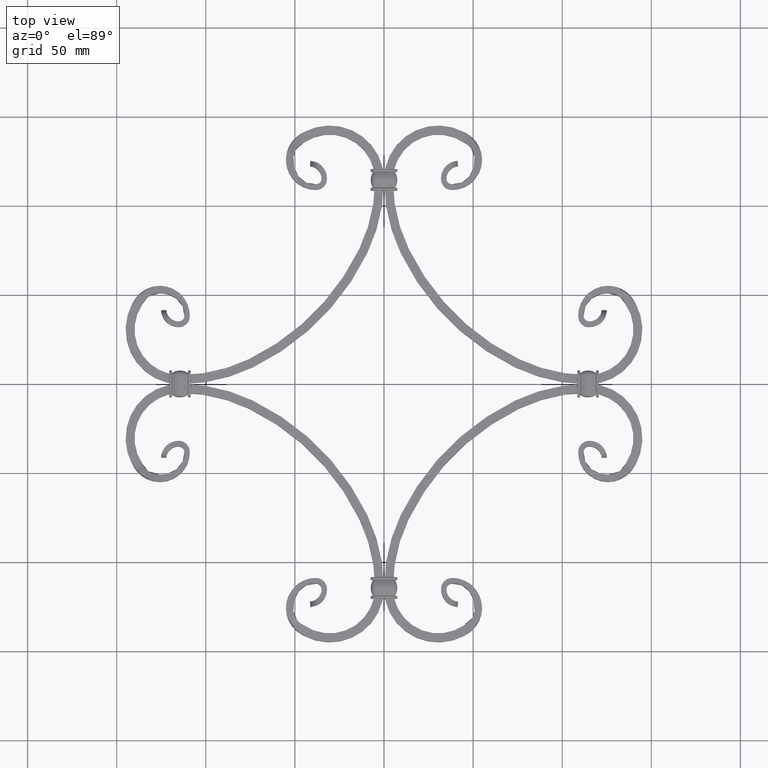
[diagram: clean part render]
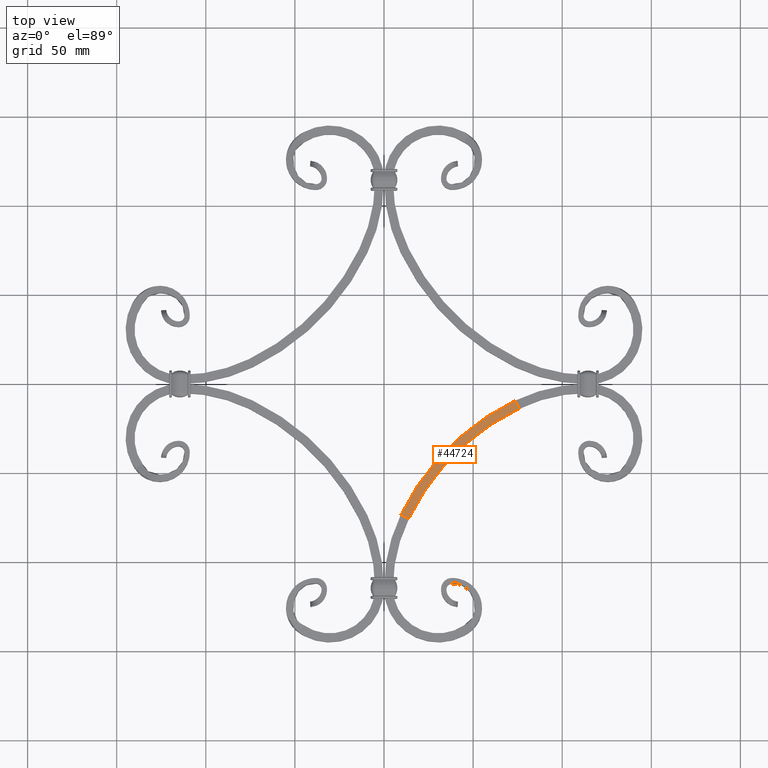
[diagram: same view with one face highlighted and labeled with its STEP entity id]
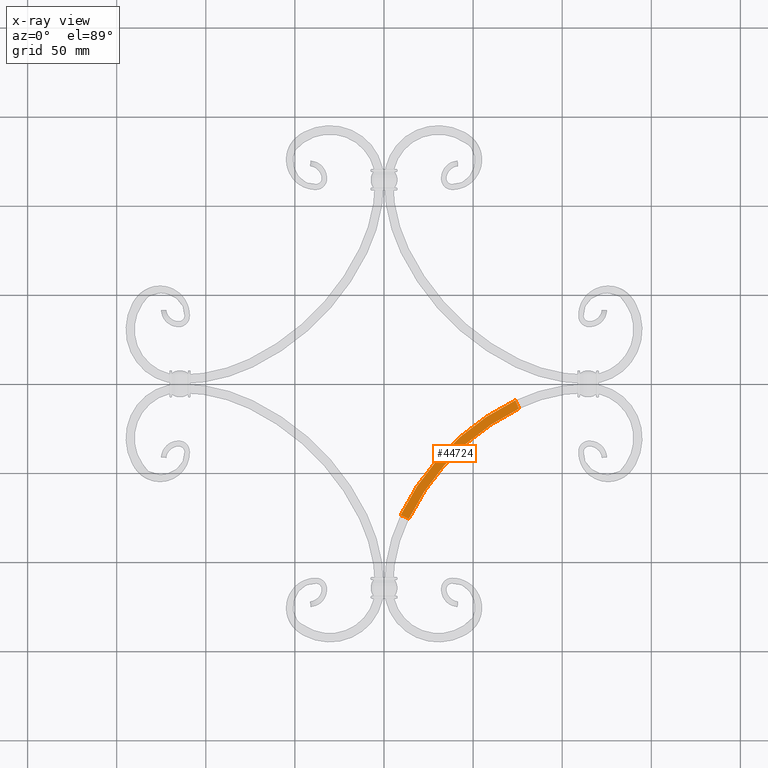
[diagram: x-ray of the same camera — body ghosted, the highlighted face saturated]
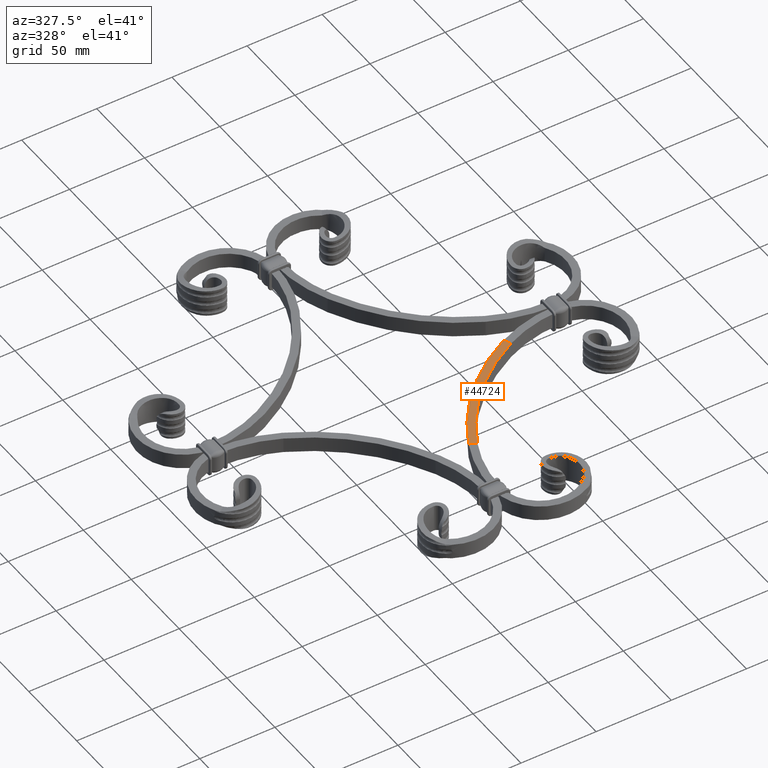
[diagram: same view with one face highlighted and labeled with its STEP entity id]
A machine part, top view. The second image highlights one B-rep face of the part: STEP entity #44724.
The next image is the same camera in x-ray: the body ghosted, the highlighted face saturated — about 0% of this face is hidden behind the body in this view.
A second angle (auxiliary view) of the same face is appended — the face is thin or edge-on in the first view.
In plain terms, the highlighted planar face has unit normal (0, 0, -1).
Its self-contained STEP definition (entity closure, byte-faithful):
#413 = LINE ( 'NONE', #16867, #42551 ) ;
#1353 = VERTEX_POINT ( 'NONE', #29025 ) ;
#3047 = ORIENTED_EDGE ( 'NONE', *, *, #9723, .F. ) ;
#3595 = DIRECTION ( 'NONE',  ( 0.000000000000000000, 0.000000000000000000, -1.000000000000000000 ) ) ;
#4194 = CARTESIAN_POINT ( 'NONE',  ( 9.381487006249196625, -73.59507978403622985, 5.000000000000000000 ) ) ;
#4941 = DIRECTION ( 'NONE',  ( -0.9001969467420302129, 0.4354830158299246579, 0.000000000000000000 ) ) ;
#5286 = DIRECTION ( 'NONE',  ( 0.9001969467420305460, -0.4354830158299238807, 0.000000000000000000 ) ) ;
#8403 = CARTESIAN_POINT ( 'NONE',  ( 133.7695810847829989, -133.7695810847827147, 5.000000000000000000 ) ) ;
#8825 = CIRCLE ( 'NONE', #16293, 133.1787558030673040 ) ;
#9723 = EDGE_CURVE ( 'NONE', #25202, #1353, #413, .T. ) ;
#10189 = PLANE ( 'NONE',  #24859 ) ;
#10343 = CARTESIAN_POINT ( 'NONE',  ( 9.381487006249196625, -73.59507978403625827, 5.000000000000000000 ) ) ;
#11482 = ORIENTED_EDGE ( 'NONE', *, *, #25654, .T. ) ;
#11821 = ORIENTED_EDGE ( 'NONE', *, *, #12392, .T. ) ;
#12216 = CARTESIAN_POINT ( 'NONE',  ( 73.59507978403630091, -9.381487006248601546, 5.000000000000000000 ) ) ;
#12392 = EDGE_CURVE ( 'NONE', #37237, #26171, #39915, .T. ) ;
#13118 = ORIENTED_EDGE ( 'NONE', *, *, #26234, .F. ) ;
#14260 = DIRECTION ( 'NONE',  ( 1.000000000000000000, 0.000000000000000000, 0.000000000000000000 ) ) ;
#16293 = AXIS2_PLACEMENT_3D ( 'NONE', #8403, #19673, #4941 ) ;
#16715 = DIRECTION ( 'NONE',  ( 0.4354830158299308196, -0.9001969467420272153, 0.000000000000000000 ) ) ;
#16867 = CARTESIAN_POINT ( 'NONE',  ( 73.59507978403630091, -9.381487006248608651, 5.000000000000000000 ) ) ;
#17225 = CARTESIAN_POINT ( 'NONE',  ( 13.88247173995935135, -75.77249486318585525, 5.000000000000000000 ) ) ;
#19673 = DIRECTION ( 'NONE',  ( -0.000000000000000000, -0.000000000000000000, -1.000000000000000000 ) ) ;
#20870 = FACE_OUTER_BOUND ( 'NONE', #31095, .T. ) ;
#23638 = DIRECTION ( 'NONE',  ( -0.9001969467420303239, 0.4354830158299245468, 0.000000000000000000 ) ) ;
#24859 = AXIS2_PLACEMENT_3D ( 'NONE', #10343, #3595, #14260 ) ;
#25202 = VERTEX_POINT ( 'NONE', #12216 ) ;
#25654 = EDGE_CURVE ( 'NONE', #26171, #1353, #8825, .T. ) ;
#26171 = VERTEX_POINT ( 'NONE', #17225 ) ;
#26226 = CIRCLE ( 'NONE', #32926, 138.1787558030673324 ) ;
#26234 = EDGE_CURVE ( 'NONE', #37237, #25202, #26226, .T. ) ;
#29025 = CARTESIAN_POINT ( 'NONE',  ( 75.77249486318596894, -13.88247173995874562, 5.000000000000000000 ) ) ;
#30446 = CARTESIAN_POINT ( 'NONE',  ( 133.7695810847829989, -133.7695810847827147, 5.000000000000000000 ) ) ;
#30959 = CARTESIAN_POINT ( 'NONE',  ( 9.381487006249189520, -73.59507978403622985, 5.000000000000000000 ) ) ;
#31095 = EDGE_LOOP ( 'NONE', ( #11482, #3047, #13118, #11821 ) ) ;
#32926 = AXIS2_PLACEMENT_3D ( 'NONE', #30446, #45273, #23638 ) ;
#37237 = VERTEX_POINT ( 'NONE', #30959 ) ;
#39915 = LINE ( 'NONE', #4194, #46649 ) ;
#42551 = VECTOR ( 'NONE', #16715, 1000.000000000000000 ) ;
#44724 = ADVANCED_FACE ( 'NONE', ( #20870 ), #10189, .F. ) ;
#45273 = DIRECTION ( 'NONE',  ( -0.000000000000000000, -0.000000000000000000, -1.000000000000000000 ) ) ;
#46649 = VECTOR ( 'NONE', #5286, 1000.000000000000114 ) ;